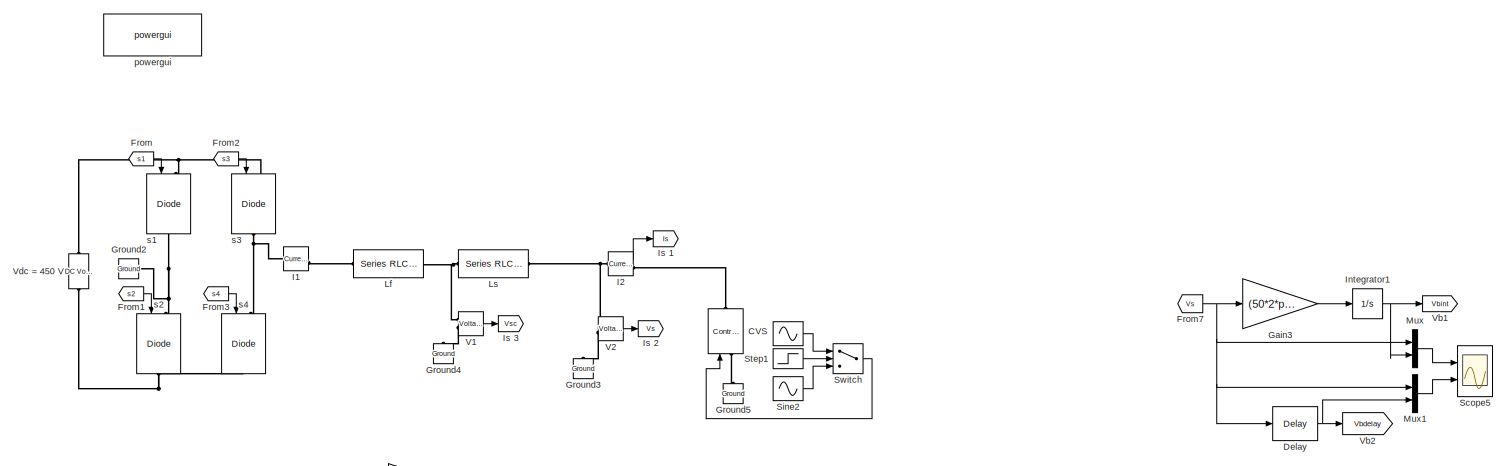
[diagram: root canvas - part 1/3, top center region]
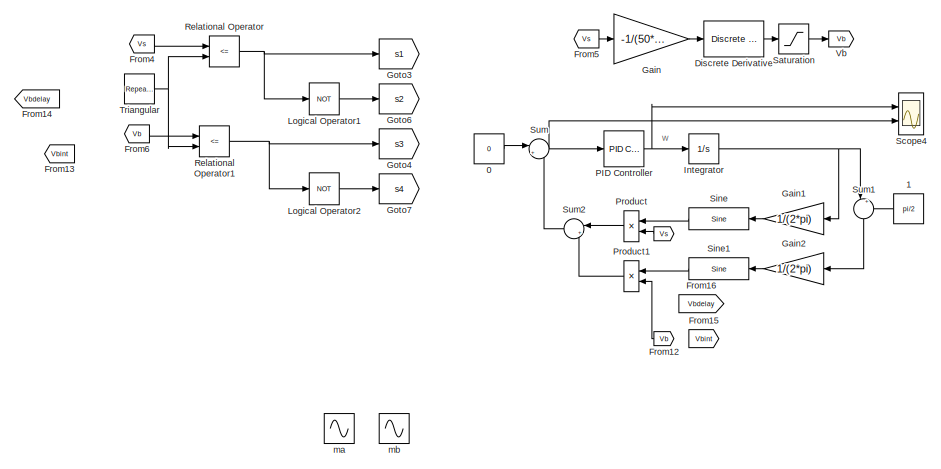
[diagram: root canvas - part 2/3, bottom left region]
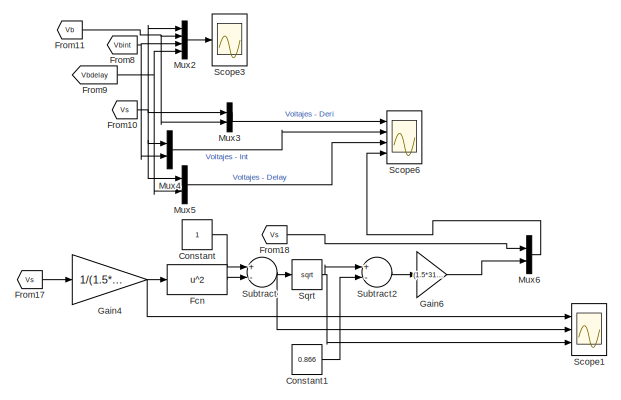
[diagram: root canvas - part 3/3, bottom right region]
MODEL slx_26b7749876d8
KIND model
BLOCK [Sin]  
  Amplitude = 311
  Frequency = 2*pi*50
  Ports = [0, 1]
  SampleTime = 0
BLOCK [Constant] 0
  Value = 0
BLOCK [Constant] 1 
  Value = pi/2
BLOCK [Reference] CVS  REF=powerlib/Electrical
Sources/Controlled Voltage Source
  Amplitude = 311
  Frequency = 50
  Initialize = on
  Measurements = None
  Phase = 0
  Ports = [1, 0, 0, 0, 0, 1, 1]
  SourceBlock = powerlib/Electrical\nSources/Controlled Voltage Source
  SourceType = Controlled Voltage Source
  Source_Type = AC
BLOCK [Constant] Constant
BLOCK [Constant] Constant1
  Value = 0.866
BLOCK [Delay] Delay
  DelayLength = 5000
  InputPortMap = u0
  Ports = [1, 1]
BLOCK [Reference] Discrete Derivative  REF=simulink/Discrete/Discrete Derivative
  DoSatur = off
  ICPrevScaledInput = 0.0
  InputProcessing = Inherited
  LockScale = off
  OutDataType = fixdt(1, 16)
  OutDataTypeStr = Inherit: Inherit via internal rule
  OutMax = []
  OutMin = []
  OutScaling = 2^-10
  OutputDataTypeScalingMode = Inherit via internal rule
  Ports = [1, 1]
  RndMeth = Floor
  SourceBlock = simulink/Discrete/Discrete Derivative
  SourceType = Discrete Derivative
  gainval = 1.0
BLOCK [Fcn] Fcn
  Expr = u^2
BLOCK [From] From
  GotoTag = s1
BLOCK [From] From1
  GotoTag = s2
BLOCK [From] From10
  GotoTag = Vs
  TagVisibility = global
BLOCK [From] From11
  GotoTag = Vb
  TagVisibility = global
BLOCK [From] From12
  GotoTag = Vb
  TagVisibility = global
BLOCK [From] From13
  GotoTag = Vbint
  TagVisibility = global
BLOCK [From] From14
  GotoTag = Vbdelay
  TagVisibility = global
BLOCK [From] From15
  GotoTag = Vbint
  TagVisibility = global
BLOCK [From] From16
  GotoTag = Vbdelay
  TagVisibility = global
BLOCK [From] From17
  GotoTag = Vs
  TagVisibility = global
BLOCK [From] From18
  GotoTag = Vs
  TagVisibility = global
BLOCK [From] From2
  GotoTag = s3
BLOCK [From] From3
  GotoTag = s4
BLOCK [From] From4
  GotoTag = Vs
  TagVisibility = global
BLOCK [From] From5
  GotoTag = Vs
  TagVisibility = global
BLOCK [From] From6
  GotoTag = Vb
  TagVisibility = global
BLOCK [From] From7
  GotoTag = Vs
  TagVisibility = global
BLOCK [From] From8
  GotoTag = Vbint
  TagVisibility = global
BLOCK [From] From9
  GotoTag = Vbdelay
  TagVisibility = global
BLOCK [Gain] Gain
  Gain = -1/(50*2*pi)
  OutDataTypeStr = Inherit: Inherit via internal rule
  ParamDataTypeStr = Inherit: Inherit via internal rule
  SaturateOnIntegerOverflow = off
BLOCK [Gain] Gain1
  Gain = 1/(2*pi)
  OutDataTypeStr = Inherit: Inherit via internal rule
  ParamDataTypeStr = Inherit: Inherit via internal rule
  SaturateOnIntegerOverflow = off
BLOCK [Gain] Gain2
  Gain = 1/(2*pi)
  OutDataTypeStr = Inherit: Inherit via internal rule
  ParamDataTypeStr = Inherit: Inherit via internal rule
  SaturateOnIntegerOverflow = off
BLOCK [Gain] Gain3
  Gain = (50*2*pi)
  OutDataTypeStr = Inherit: Inherit via internal rule
  ParamDataTypeStr = Inherit: Inherit via internal rule
  SaturateOnIntegerOverflow = off
BLOCK [Gain] Gain4
  Gain = 1/(1.5*311)
  OutDataTypeStr = Inherit: Inherit via internal rule
  ParamDataTypeStr = Inherit: Inherit via internal rule
  SaturateOnIntegerOverflow = off
BLOCK [Gain] Gain6
  Gain = (1.5*311)
  OutDataTypeStr = Inherit: Inherit via internal rule
  ParamDataTypeStr = Inherit: Inherit via internal rule
  SaturateOnIntegerOverflow = off
BLOCK [Goto] Goto3
  GotoTag = s1
BLOCK [Goto] Goto4
  GotoTag = s3
BLOCK [Goto] Goto6
  GotoTag = s2
BLOCK [Goto] Goto7
  GotoTag = s4
BLOCK [Reference] Ground2  REF=powerlib/Elements/Ground
  AttributesFormatString = \n
  LConnTagsString = a
  Ports = [0, 0, 0, 0, 0, 1]
  SourceBlock = powerlib/Elements/Ground
  SourceType = Ground
BLOCK [Reference] Ground3  REF=powerlib/Elements/Ground
  AttributesFormatString = \n
  LConnTagsString = a
  Ports = [0, 0, 0, 0, 0, 1]
  SourceBlock = powerlib/Elements/Ground
  SourceType = Ground
BLOCK [Reference] Ground4  REF=powerlib/Elements/Ground
  AttributesFormatString = \n
  LConnTagsString = a
  Ports = [0, 0, 0, 0, 0, 1]
  SourceBlock = powerlib/Elements/Ground
  SourceType = Ground
BLOCK [Reference] Ground5  REF=powerlib/Elements/Ground
  AttributesFormatString = \n
  LConnTagsString = a
  Ports = [0, 0, 0, 0, 0, 1]
  SourceBlock = powerlib/Elements/Ground
  SourceType = Ground
BLOCK [Reference] I1  REF=powerlib/Measurements/Current Measurement
  AttributesFormatString = \n
  OutputType = Magnitude
  PSBequivalent = 0
  PhasorSimulation = off
  Ports = [0, 1, 0, 0, 0, 1, 1]
  SourceBlock = powerlib/Measurements/Current Measurement
  SourceType = Current Measurement
  Tag = PoWeRsYsTeMmEaSuReMeNt
BLOCK [Reference] I2  REF=powerlib/Measurements/Current Measurement
  AttributesFormatString = \n
  OutputType = Magnitude
  PSBequivalent = 0
  PhasorSimulation = off
  Ports = [0, 1, 0, 0, 0, 1, 1]
  SourceBlock = powerlib/Measurements/Current Measurement
  SourceType = Current Measurement
  Tag = PoWeRsYsTeMmEaSuReMeNt
BLOCK [Integrator] Integrator
  Ports = [1, 1]
BLOCK [Integrator] Integrator1
  InitialCondition = -311
  Ports = [1, 1]
BLOCK [Goto] Is 1
  GotoTag = Is
  TagVisibility = global
BLOCK [Goto] Is 2
  GotoTag = Vs
  TagVisibility = global
BLOCK [Goto] Is 3
  GotoTag = Vsc
  TagVisibility = global
BLOCK [Reference] Lf  REF=powerlib/Elements/Series RLC Branch
  BranchType = RL
  Capacitance = 1e-6
  Inductance = 2e-3
  InitialCurrent = 0
  InitialVoltage = 0
  LConnTagsString = __new0
  Measurements = None
  Ports = [0, 0, 0, 0, 0, 1, 1]
  RConnTagsString = __new0
  Resistance = 1
  SetiL0 = off
  Setx0 = off
  SourceBlock = powerlib/Elements/Series RLC Branch
  SourceType = Series RLC Branch
BLOCK [Logic] Logical Operator1
  AllPortsSameDT = off
  Operator = NOT
  OutDataTypeStr = boolean
  Ports = [1, 1]
BLOCK [Logic] Logical Operator2
  AllPortsSameDT = off
  Operator = NOT
  OutDataTypeStr = boolean
  Ports = [1, 1]
BLOCK [Reference] Ls  REF=powerlib/Elements/Series RLC Branch
  BranchType = RL
  Capacitance = 1e-6
  Inductance = 1.5e-3
  InitialCurrent = 0
  InitialVoltage = 0
  LConnTagsString = __new0
  Measurements = None
  Ports = [0, 0, 0, 0, 0, 1, 1]
  RConnTagsString = __new0
  Resistance = 1
  SetiL0 = off
  Setx0 = off
  SourceBlock = powerlib/Elements/Series RLC Branch
  SourceType = Series RLC Branch
BLOCK [Mux] Mux
  DisplayOption = bar
  Inputs = 2
  Ports = [2, 1]
BLOCK [Mux] Mux1
  DisplayOption = bar
  Inputs = 2
  Ports = [2, 1]
BLOCK [Mux] Mux2
  DisplayOption = bar
  Ports = [4, 1]
BLOCK [Mux] Mux3
  DisplayOption = bar
  Inputs = 2
  Ports = [2, 1]
BLOCK [Mux] Mux4
  DisplayOption = bar
  Inputs = 2
  Ports = [2, 1]
BLOCK [Mux] Mux5
  DisplayOption = bar
  Inputs = 2
  Ports = [2, 1]
BLOCK [Mux] Mux6
  DisplayOption = bar
  Inputs = 2
  Ports = [2, 1]
BLOCK [Reference] PID Controller  REF=simulink/Continuous/PID Controller
  AntiWindupMode = none
  Controller = PI
  D = 0
  DOutDataTypeStr = Inherit: Inherit via internal rule
  DOutMax = []
  DOutMin = []
  DParamDataTypeStr = Inherit: Inherit via internal rule
  DParamMax = []
  DParamMin = []
  ExternalReset = none
  FilterContinuousStateAttributes = ''
  FilterMethod = Forward Euler
  FilterOutDataTypeStr = Inherit: Inherit via internal rule
  FilterOutMax = []
  FilterOutMin = []
  FilterRTWStateStorageClass = Auto
  FilterStateMustResolveToSignalObject = off
  Form = Parallel
  I = 10
  IOutDataTypeStr = Inherit: Inherit via internal rule
  IOutMax = []
  IOutMin = []
  IParamDataTypeStr = Inherit: Inherit via internal rule
  IParamMax = []
  IParamMin = []
  IgnoreLimit = off
  InitialConditionForFilter = 0
  InitialConditionForIntegrator = 0
  InitialConditionSource = internal
  IntegratorContinuousStateAttributes = ''
  IntegratorMethod = Forward Euler
  IntegratorOutDataTypeStr = Inherit: Inherit via internal rule
  IntegratorOutMax = []
  IntegratorOutMin = []
  IntegratorRTWStateStorageClass = Auto
  IntegratorStateMustResolveToSignalObject = off
  Kb = 1
  KbOutDataTypeStr = Inherit: Inherit via internal rule
  KbOutMax = []
  KbOutMin = []
  KbParamDataTypeStr = Inherit: Inherit via internal rule
  KbParamMax = []
  KbParamMin = []
  Kt = 1
  KtOutDataTypeStr = Inherit: Inherit via internal rule
  KtOutMax = []
  KtOutMin = []
  KtParamDataTypeStr = Inherit: Inherit via internal rule
  KtParamMax = []
  KtParamMin = []
  LimitOutput = off
  LinearizeAsGain = on
  LockScale = off
  LowerSaturationLimit = -inf
  N = 100
  NOutDataTypeStr = Inherit: Inherit via internal rule
  NOutMax = []
  NOutMin = []
  NParamDataTypeStr = Inherit: Inherit via internal rule
  NParamMax = []
  NParamMin = []
  P = 10
  POutDataTypeStr = Inherit: Inherit via internal rule
  POutMax = []
  POutMin = []
  PParamDataTypeStr = Inherit: Inherit via internal rule
  PParamMax = []
  PParamMin = []
  Ports = [1, 1]
  RndMeth = Floor
  SampleTime = 1
  SaturateOnIntegerOverflow = off
  SaturationOutDataTypeStr = Inherit: Same as input
  SaturationOutMax = []
  SaturationOutMin = []
  SourceBlock = simulink/Continuous/PID Controller
  SourceType = PID 1dof
  SumAccumDataTypeStr = Inherit: Inherit via internal rule
  SumDAccumDataTypeStr = Inherit: Inherit via internal rule
  SumDOutDataTypeStr = Inherit: Inherit via internal rule
  SumDOutMax = []
  SumDOutMin = []
  SumI1AccumDataTypeStr = Inherit: Inherit via internal rule
  SumI1OutDataTypeStr = Inherit: Inherit via internal rule
  SumI1OutMax = []
  SumI1OutMin = []
  SumI2AccumDataTypeStr = Inherit: Inherit via internal rule
  SumI2OutDataTypeStr = Inherit: Inherit via internal rule
  SumI2OutMax = []
  SumI2OutMin = []
  SumI3AccumDataTypeStr = Inherit: Inherit via internal rule
  SumI3OutDataTypeStr = Inherit: Inherit via internal rule
  SumI3OutMax = []
  SumI3OutMin = []
  SumOutDataTypeStr = Inherit: Inherit via internal rule
  SumOutMax = []
  SumOutMin = []
  TimeDomain = Continuous-time
  TrackingMode = off
  UpperSaturationLimit = inf
  ZeroCross = on
BLOCK [Product] Product
  InputSameDT = off
  OutDataTypeStr = Inherit: Inherit via internal rule
  Ports = [2, 1]
  RndMeth = Floor
  SaturateOnIntegerOverflow = off
BLOCK [Product] Product1
  InputSameDT = off
  OutDataTypeStr = Inherit: Inherit via internal rule
  Ports = [2, 1]
  RndMeth = Floor
  SaturateOnIntegerOverflow = off
BLOCK [RelationalOperator] Relational Operator
  InputSameDT = off
  Operator = <=
  OutDataTypeStr = boolean
  Ports = [2, 1]
BLOCK [RelationalOperator] Relational Operator1
  InputSameDT = off
  Operator = <=
  OutDataTypeStr = boolean
  Ports = [2, 1]
BLOCK [Saturate] Saturation
  InputPortMap = u0
  LowerLimit = -312
  Ports = [1, 1]
  UpperLimit = 312
BLOCK [Scope] Scope1
  DataFormat = StructureWithTime
  Floating = off
  LimitDataPoints = off
  MaxDataPoints = 500000
  NumInputPorts = 3
  Ports = [3]
  SampleTime = 0
  SaveName = sps1phPWM1_str
  SaveToWorkspace = on
  ShowLegends = off
  TimeRange = 0.1
  YMax = 0.7~1~1
  YMin = -0.7~0.55~0.725
BLOCK [Scope] Scope3
  DataFormat = StructureWithTime
  Floating = off
  LimitDataPoints = off
  MaxDataPoints = 500000
  NumInputPorts = 1
  Ports = [1]
  SampleTime = 0
  SaveName = sps1phPWM1_str2
  SaveToWorkspace = on
  ShowLegends = off
  TimeRange = 0.1
  YMax = 100
  YMin = -100
  ZoomMode = xonly
BLOCK [Scope] Scope4
  DataFormat = StructureWithTime
  Floating = off
  LimitDataPoints = off
  MaxDataPoints = 500000
  NumInputPorts = 2
  Ports = [2]
  SampleTime = 0
  SaveName = sps1phPWM1_str3
  SaveToWorkspace = on
  ShowLegends = off
  TimeRange = 0.1
  YMax = 1000~400
  YMin = -100~-400
BLOCK [Scope] Scope5
  DataFormat = StructureWithTime
  Floating = off
  LimitDataPoints = off
  MaxDataPoints = 500000
  NumInputPorts = 2
  Ports = [2]
  SampleTime = 0
  SaveName = sps1phPWM1_str4
  SaveToWorkspace = on
  ShowLegends = off
  TimeRange = 0.1
  YMax = 650~350
  YMin = -350~-350
  ZoomMode = xonly
BLOCK [Scope] Scope6
  DataFormat = StructureWithTime
  Floating = off
  LegendLocations = 0.87291     0.92175     0.10345    0.038503\n 0.8784     0.68431    0.097962    0.038503\n0.86664     0.44688     0.10972    0.038503\n0.90347     0.21052    0.072884    0.038503
  LimitDataPoints = off
  MaxDataPoints = 500000
  NumInputPorts = 4
  Ports = [4]
  SampleTime = 0
  SaveName = Voltajes
  SaveToWorkspace = on
  ShowLegends = on
  TimeRange = 0.1
  YMax = 100~5~5~5
  YMin = -100~-5~-5~-5
  ZoomMode = yonly
BLOCK [Reference] Sine  REF=simulink/Lookup
Tables/Sine
  Formula = sin(2*pi*u)
  NumDataPoints = (2^5)+1
  OutputWordLength = 16
  Ports = [1, 1]
  SourceBlock = simulink/Lookup\nTables/Sine
  SourceType = Sine and Cosine
BLOCK [Reference] Sine1  REF=simulink/Lookup
Tables/Sine
  Formula = sin(2*pi*u)
  NumDataPoints = (2^5)+1
  OutputWordLength = 16
  Ports = [1, 1]
  SourceBlock = simulink/Lookup\nTables/Sine
  SourceType = Sine and Cosine
BLOCK [Sin] Sine2 
  Amplitude = 311
  Frequency = 2*pi*50
  Ports = [0, 1]
  SampleTime = 0
BLOCK [Sqrt] Sqrt
BLOCK [Step] Step1
  After = 0
  Before = 1
  SampleTime = 0
  Time = 2/50
BLOCK [Sum] Subtract
  InputSameDT = off
  Inputs = +-
  OutDataTypeStr = Inherit: Inherit via internal rule
  Ports = [2, 1]
  SaturateOnIntegerOverflow = off
BLOCK [Sum] Subtract2
  InputSameDT = off
  Inputs = +-
  OutDataTypeStr = Inherit: Inherit via internal rule
  Ports = [2, 1]
  SaturateOnIntegerOverflow = off
BLOCK [Sum] Sum
  IconShape = round
  InputSameDT = off
  Inputs = |++
  OutDataTypeStr = Inherit: Inherit via internal rule
  Ports = [2, 1]
  SaturateOnIntegerOverflow = off
BLOCK [Sum] Sum1
  IconShape = round
  InputSameDT = off
  Inputs = |+-
  OutDataTypeStr = Inherit: Inherit via internal rule
  Ports = [2, 1]
  SaturateOnIntegerOverflow = off
BLOCK [Sum] Sum2
  IconShape = round
  InputSameDT = off
  Inputs = |++
  OutDataTypeStr = Inherit: Inherit via internal rule
  Ports = [2, 1]
  SaturateOnIntegerOverflow = off
BLOCK [Switch] Switch
  Threshold = 0.5
BLOCK [Reference] Triangular  REF=simulink/Sources/Repeating
Sequence
  Ports = [0, 1]
  SourceBlock = simulink/Sources/Repeating\nSequence
  SourceType = Repeating table
  rep_seq_t = [0 0.5 1]*1/10E3
  rep_seq_y = [-1 1 -1]
BLOCK [Reference] V1  REF=powerlib/Measurements/Voltage Measurement
  AttributesFormatString = \n
  OutputType = Magnitude
  PSBequivalent = 0
  PhasorSimulation = off
  Ports = [0, 1, 0, 0, 0, 2]
  SourceBlock = powerlib/Measurements/Voltage Measurement
  SourceType = Voltage Measurement
  Tag = PoWeRsYsTeMmEaSuReMeNt
BLOCK [Reference] V2  REF=powerlib/Measurements/Voltage Measurement
  AttributesFormatString = \n
  OutputType = Magnitude
  PSBequivalent = 0
  PhasorSimulation = off
  Ports = [0, 1, 0, 0, 0, 2]
  SourceBlock = powerlib/Measurements/Voltage Measurement
  SourceType = Voltage Measurement
  Tag = PoWeRsYsTeMmEaSuReMeNt
BLOCK [Goto] Vb
  GotoTag = Vb
  TagVisibility = global
BLOCK [Goto] Vb1
  GotoTag = Vbint
  TagVisibility = global
BLOCK [Goto] Vb2
  GotoTag = Vbdelay
  TagVisibility = global
BLOCK [Reference] Vdc = 450 V  REF=powerlib/Electrical
Sources/DC Voltage Source
  Amplitude = 450
  AttributesFormatString = \n
  Description = source block
  Measurements = None
  Ports = [0, 0, 0, 0, 0, 1, 1]
  SourceBlock = powerlib/Electrical\nSources/DC Voltage Source
  SourceType = DC Voltage Source
BLOCK [Sin] ma
  Amplitude = 0.8
  Frequency = 2*pi*50
  Ports = [0, 1]
  SampleTime = 0
BLOCK [Sin] mb
  Amplitude = 0.8
  Frequency = 2*pi*50
  Phase = -2*pi/3
  Ports = [0, 1]
  SampleTime = 0
BLOCK [Reference] powergui  REF=powerlib/powergui
  DisableRonSwitches = off
  DisableSnubberDevices = off
  DisableVfSwitches = off
  DisplayEquations = off
  DisplayStyle = 1
  EnableUseOfTLC = off
  ErrMax = 1e-4
  Frange = [0:2:500]
  FreqAxis = off
  FunctionMessages = off
  HookPort = off
  Interpol = off
  Iterations = 50
  MaxFrequency = 1000
  Pbase = 100e6
  Ports = []
  Priority = 1
  ResistiveCurrentMeasurement = off
  RestoreLinks = warning
  RmsSteady = 1
  SPID = off
  SampleTime = 1e-6
  ShowGrid = off
  SolverType = Backward Euler
  SourceBlock = powerlib/powergui
  SourceType = PSB option menu block
  StartTime = 0.0
  SwTol = 0
  Ts = 0
  UnitsV = kV
  UnitsW = MW
  UserDataPersistent = on
  Xlog = on
  Ylog = off
  ZoomFFT = off
  cycles = 1
  display = off
  echomessages = off
  frequency = 60
  frequencyindice = 0
  frequencyindicesteady = 1
  fundamental = 60
  methode = off
  save = off
  variable = ZData
  x0status = blocks
BLOCK [Reference] s1  REF=powerlib/Power
Electronics/IGBT//Diode
  Cs = inf
  Measurements = off
  Ports = [1, 0, 0, 0, 0, 1, 1]
  Ron = 1e-4
  Rs = 1e5
  SourceBlock = powerlib/Power\nElectronics/IGBT//Diode
  SourceType = IGBT/Diode
BLOCK [Reference] s2  REF=powerlib/Power
Electronics/IGBT//Diode
  Cs = inf
  Measurements = off
  Ports = [1, 0, 0, 0, 0, 1, 1]
  Ron = 1e-4
  Rs = 1e5
  SourceBlock = powerlib/Power\nElectronics/IGBT//Diode
  SourceType = IGBT/Diode
BLOCK [Reference] s3  REF=powerlib/Power
Electronics/IGBT//Diode
  Cs = inf
  Measurements = off
  Ports = [1, 0, 0, 0, 0, 1, 1]
  Ron = 1e-4
  Rs = 1e5
  SourceBlock = powerlib/Power\nElectronics/IGBT//Diode
  SourceType = IGBT/Diode
BLOCK [Reference] s4  REF=powerlib/Power
Electronics/IGBT//Diode
  Cs = inf
  Measurements = off
  Ports = [1, 0, 0, 0, 0, 1, 1]
  Ron = 1e-4
  Rs = 1e5
  SourceBlock = powerlib/Power\nElectronics/IGBT//Diode
  SourceType = IGBT/Diode
ANNOTATION (root): w
NET  :1 -> Product:2, Switch:1
LINE 0:1 -> Sum:1
LINE 1 :1 -> Sum1:2
LINE Constant1:1 -> Subtract2:2
LINE Constant:1 -> Subtract:1
NET Delay:1 -> Mux1:2, Vb2:1
LINE Discrete Derivative:1 -> Saturation:1
LINE Fcn:1 -> Subtract:2
NET From10:1 -> Mux2:1, Mux3:1, Mux4:1, Mux5:1
NET From11:1 -> Mux2:2, Mux3:2
LINE From12:1 -> Product1:2
LINE From17:1 -> Gain4:1
LINE From18:1 -> Mux6:1
LINE From1:1 -> s2:1
LINE From2:1 -> s3:1
LINE From3:1 -> s4:1
LINE From4:1 -> Relational Operator:1
LINE From5:1 -> Gain:1
LINE From6:1 -> Relational Operator1:1
NET From7:1 -> Delay:1, Gain3:1, Mux1:1, Mux:1
NET From8:1 -> Mux2:3, Mux4:2
NET From9:1 -> Mux2:4, Mux5:2
LINE From:1 -> s1:1
LINE Gain1:1 -> Sine:1
LINE Gain2:1 -> Sine1:1
LINE Gain3:1 -> Integrator1:1
NET Gain4:1 -> Fcn:1, Scope1:1
LINE Gain6:1 -> Mux6:2
LINE Gain:1 -> Discrete Derivative:1
LINE I2:1 -> Is 1:1
NET Integrator1:1 -> Mux:2, Vb1:1
NET Integrator:1 -> Gain1:1, Sum1:1
LINE Logical Operator1:1 -> Goto6:1
LINE Logical Operator2:1 -> Goto7:1
LINE Mux1:1 -> Scope5:2
LINE Mux2:1 -> Scope3:1
LINE Mux3:1 -> Scope6:1
LINE Mux4:1 -> Scope6:2
LINE Mux5:1 -> Scope6:3
LINE Mux6:1 -> Scope6:4
LINE Mux:1 -> Scope5:1
NET PID Controller:1 -> Integrator:1, Scope4:1
LINE Product1:1 -> Sum2:2
LINE Product:1 -> Sum2:1
NET Relational Operator1:1 -> Goto4:1, Logical Operator2:1
NET Relational Operator:1 -> Goto3:1, Logical Operator1:1
LINE Saturation:1 -> Vb:1
LINE Sine1:1 -> Product1:1
LINE Sine2 :1 -> Switch:3
LINE Sine:1 -> Product:1
NET Sqrt:1 -> Scope1:3, Subtract2:1
LINE Step1:1 -> Switch:2
LINE Subtract2:1 -> Gain6:1
NET Subtract:1 -> Scope1:2, Sqrt:1
LINE Sum1:1 -> Gain2:1
LINE Sum2:1 -> Sum:2
NET Sum:1 -> PID Controller:1, Scope4:2
LINE Switch:1 -> CVS:1
NET Triangular:1 -> Relational Operator1:2, Relational Operator:2
LINE V1:1 -> Is 3:1
LINE V2:1 -> Is 2:1
PLINE CVS:LConn1 -- Ground5:LConn1
PLINE CVS:RConn1 -- I2:RConn1
PNET net1: Ground2:LConn1 -- s1:RConn1 -- s2:LConn1
PLINE Ground3:LConn1 -- V2:LConn2
PLINE Ground4:LConn1 -- V1:LConn2
PNET net2: I1:LConn1 -- s3:RConn1 -- s4:LConn1
PLINE I1:RConn1 -- Lf:LConn1
PNET net3: I2:LConn1 -- Ls:RConn1 -- V2:LConn1
PNET net4: Lf:RConn1 -- Ls:LConn1 -- V1:LConn1
PNET net5: Vdc = 450 V:LConn1 -- s2:RConn1 -- s4:RConn1
PNET net6: Vdc = 450 V:RConn1 -- s1:LConn1 -- s3:LConn1
note: NET lines group one-source signal fan-out (src -> all destinations, sorted); 1:1 wires keep LINE; PNET lines group multi-terminal physical nets as a canonical sorted terminal list (undirected conserving connections); 2-terminal nets keep the pairwise PLINE form
